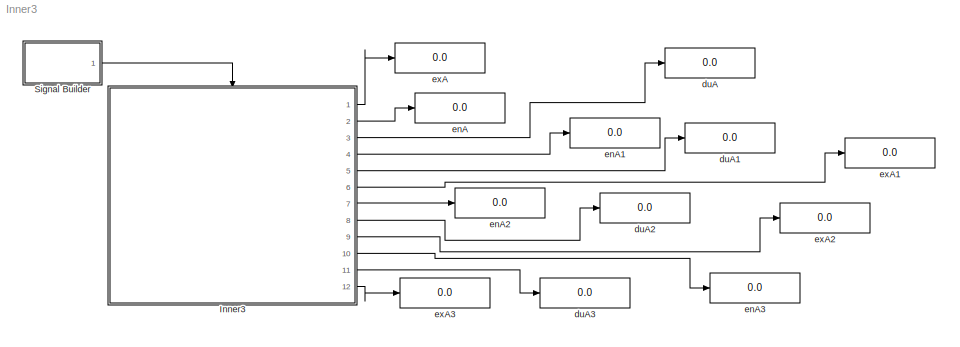
MODEL Inner3
KIND model
CONFIG AbsTol = auto
CONFIG FixedStep = auto
CONFIG MaxStep = auto
CONFIG MinStep = auto
CONFIG RelTol = 1e-3
CONFIG Solver = ode45
CONFIG SolverMode = Auto
CONFIG StartTime = 0.0
CONFIG StopTime = 10.0
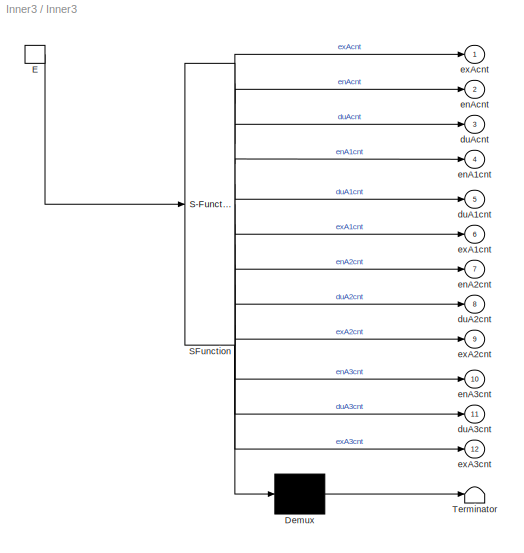
BLOCK [SubSystem] Inner3
  MaskDescription = Stateflow diagram
  MaskDisplay = plot(sf('Private','sfblk','xIcon'),sf('Private','sfblk','yIcon'));text(0.5,0,sf('Private', 'sfblk', 'tIcon'),'HorizontalAl','Center','VerticalAl','Bottom');
  MaskIconFrame = off
  MaskIconOpaque = off
  MaskIconRotate = none
  MaskIconUnits = autoscale
  MaskSelfModifiable = on
  MaskType = Stateflow
  Ports = [0, 12, 0, 1]
  TreatAsAtomicUnit = off
BLOCK [Demux] Inner3/ Demux 
  Outputs = 1
  Ports = [1, 1]
BLOCK [S-Function] Inner3/ SFunction 
  FunctionName = sf_sfun
  PortCounts = [1 13]
  Ports = [1, 13]
  Tag = Stateflow S-Function Inner3 1
BLOCK [Terminator] Inner3/ Terminator 
BLOCK [TriggerPort] Inner3/E
  Ports = [0, 1]
  ShowOutputPort = on
  TriggerType = either
BLOCK [Outport] Inner3/duA1cnt
  Port = 5
BLOCK [Outport] Inner3/duA2cnt
  Port = 8
BLOCK [Outport] Inner3/duA3cnt
  Port = 11
BLOCK [Outport] Inner3/duAcnt
  Port = 3
BLOCK [Outport] Inner3/enA1cnt
  Port = 4
BLOCK [Outport] Inner3/enA2cnt
  Port = 7
BLOCK [Outport] Inner3/enA3cnt
  Port = 10
BLOCK [Outport] Inner3/enAcnt
  Port = 2
BLOCK [Outport] Inner3/exA1cnt
  Port = 6
BLOCK [Outport] Inner3/exA2cnt
  Port = 9
BLOCK [Outport] Inner3/exA3cnt
  Port = 12
BLOCK [Outport] Inner3/exAcnt
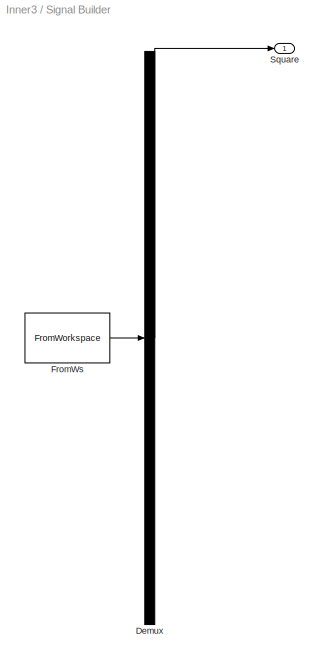
BLOCK [SubSystem] Signal Builder
  ClipboardFcn = sigbuilder_block('clipboard');
  CloseFcn = sigbuilder_block('close');
  CopyFcn = sigbuilder_block('copy');
  DeleteFcn = sigbuilder_block('delete');
  MaskDescription = Sigbuilder GUI
  MaskDisplay = plot(0,0,100,100,[10,10,40,40,10],[80,20,20,80,80],[40,10],[50,50], [40,27,10],[65,72,56],[40,25,25,10],[28,28,43,43]);
  MaskIconFrame = on
  MaskIconOpaque = off
  MaskIconRotate = port
  MaskIconUnits = autoscale
  MaskInitialization = if ~strcmp(get_param(bdroot(gcb),'SimulationStatus'),'stopped') tuvar = sigbuilder_block('maskInit'); end
  MaskType = Sigbuilder block
  ModelCloseFcn = sigbuilder_block('modelClose');
  NameChangeFcn = sigbuilder_block('namechange');
  OpenFcn = sigbuilder_block('open',[50 50 520 400 ]);
  Ports = [0, 1]
  PreSaveFcn = sigbuilder_block('preSave');
  StartFcn = sigbuilder_block('start');
  StopFcn = sigbuilder_block('stop');
  Tag = STV Subsys
  TreatAsAtomicUnit = off
BLOCK [Demux] Signal Builder/Demux
  Outputs = 1
  Ports = [1, 1]
  Tag = STV Demux
BLOCK [FromWorkspace] Signal Builder/FromWs
  SampleTime = 0
  SigBuilderData = DataTag0
  Tag = STV FromWs
  VariableName = tuvar
BLOCK [Outport] Signal Builder/Square
  Tag = STV Outport
BLOCK [Display] duA
  Decimation = 1
  Format = long
  Ports = [1]
BLOCK [Display] duA1
  Decimation = 1
  Format = long
  Ports = [1]
BLOCK [Display] duA2
  Decimation = 1
  Format = long
  Ports = [1]
BLOCK [Display] duA3
  Decimation = 1
  Format = long
  Ports = [1]
BLOCK [Display] enA
  Decimation = 1
  Format = long
  Ports = [1]
BLOCK [Display] enA1
  Decimation = 1
  Format = long
  Ports = [1]
BLOCK [Display] enA2
  Decimation = 1
  Format = long
  Ports = [1]
BLOCK [Display] enA3
  Decimation = 1
  Format = long
  Ports = [1]
BLOCK [Display] exA
  Decimation = 1
  Format = long
  Ports = [1]
BLOCK [Display] exA1
  Decimation = 1
  Format = long
  Ports = [1]
BLOCK [Display] exA2
  Decimation = 1
  Format = long
  Ports = [1]
BLOCK [Display] exA3
  Decimation = 1
  Format = long
  Ports = [1]
LINE Inner3/ Demux :1 -> Inner3/ Terminator :1
LINE Inner3/ SFunction :1 -> Inner3/ Demux :1
LINE Inner3/ SFunction :10 -> Inner3/exA2cnt:1
LINE Inner3/ SFunction :11 -> Inner3/enA3cnt:1
LINE Inner3/ SFunction :12 -> Inner3/duA3cnt:1
LINE Inner3/ SFunction :13 -> Inner3/exA3cnt:1
LINE Inner3/ SFunction :2 -> Inner3/exAcnt:1
LINE Inner3/ SFunction :3 -> Inner3/enAcnt:1
LINE Inner3/ SFunction :4 -> Inner3/duAcnt:1
LINE Inner3/ SFunction :5 -> Inner3/enA1cnt:1
LINE Inner3/ SFunction :6 -> Inner3/duA1cnt:1
LINE Inner3/ SFunction :7 -> Inner3/exA1cnt:1
LINE Inner3/ SFunction :8 -> Inner3/enA2cnt:1
LINE Inner3/ SFunction :9 -> Inner3/duA2cnt:1
LINE Inner3/E:1 -> Inner3/ SFunction :1
LINE Inner3:1 -> exA:1
LINE Inner3:10 -> enA3:1
LINE Inner3:11 -> duA3:1
LINE Inner3:12 -> exA3:1
LINE Inner3:2 -> enA:1
LINE Inner3:3 -> duA:1
LINE Inner3:4 -> enA1:1
LINE Inner3:5 -> duA1:1
LINE Inner3:6 -> exA1:1
LINE Inner3:7 -> enA2:1
LINE Inner3:8 -> duA2:1
LINE Inner3:9 -> exA2:1
LINE Signal Builder/Demux:1 -> Signal Builder/Square:1
LINE Signal Builder/FromWs:1 -> Signal Builder/Demux:1
LINE Signal Builder:1 -> Inner3:trigger
CHART Inner3 states=4 transitions=6
  STATE_LABEL 'A/\\nen: enAcnt++;\\ndu: duAcnt++;\\nex: exAcnt++;'
  STATE_LABEL 'A1/\\nen: enA1cnt++;\\ndu: duA1cnt++;\\nex: exA1cnt++;'
  STATE_LABEL 'A2/\\nen: enA2cnt++;\\ndu: duA2cnt++;\\nex: exA2cnt++;'
  STATE_LABEL 'A3/\\nen: enA3cnt++;\\ndu: duA3cnt++;\\nex: exA3cnt++;'
